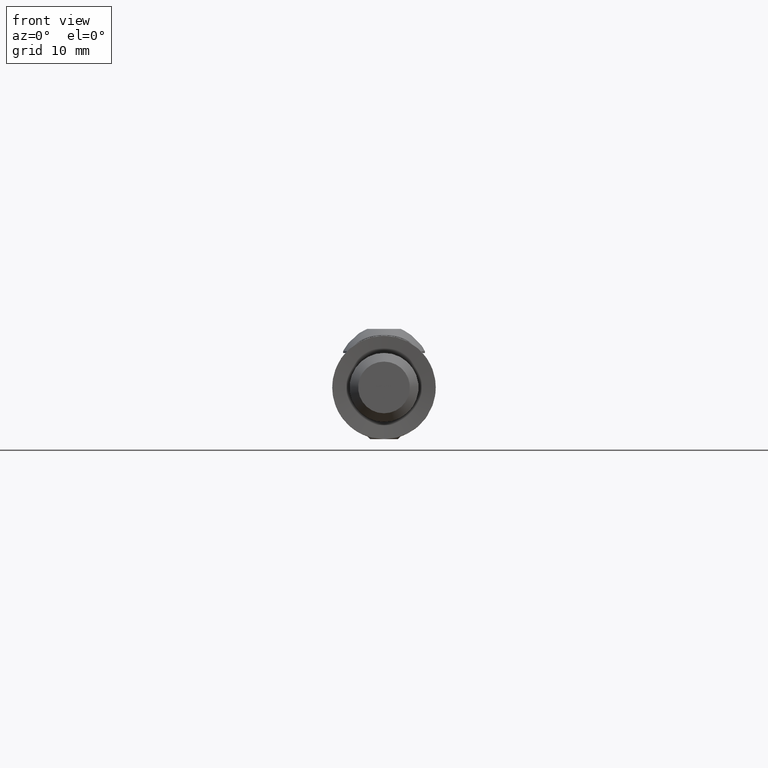
[diagram: clean part render]
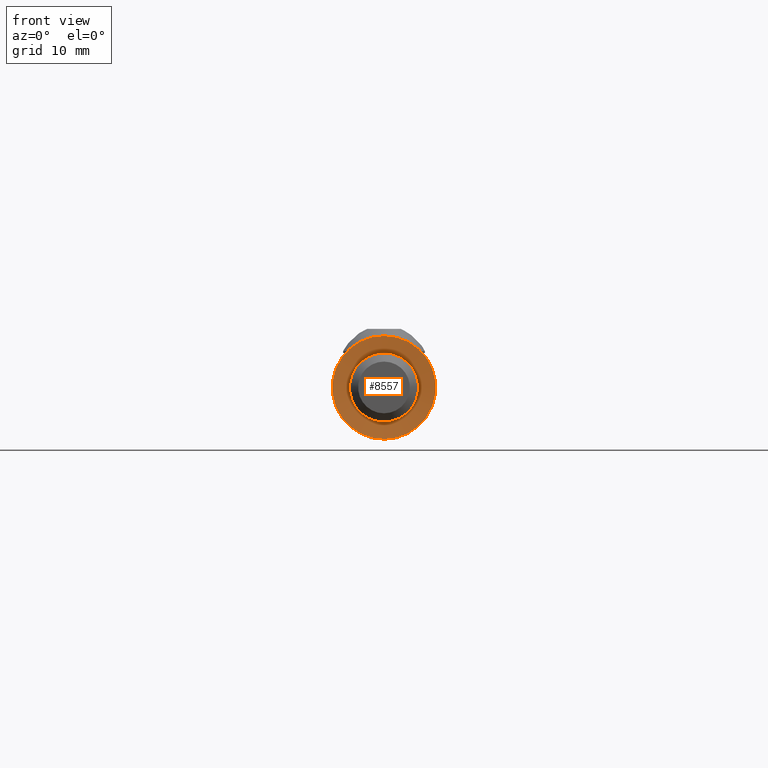
[diagram: same view with one face highlighted and labeled with its STEP entity id]
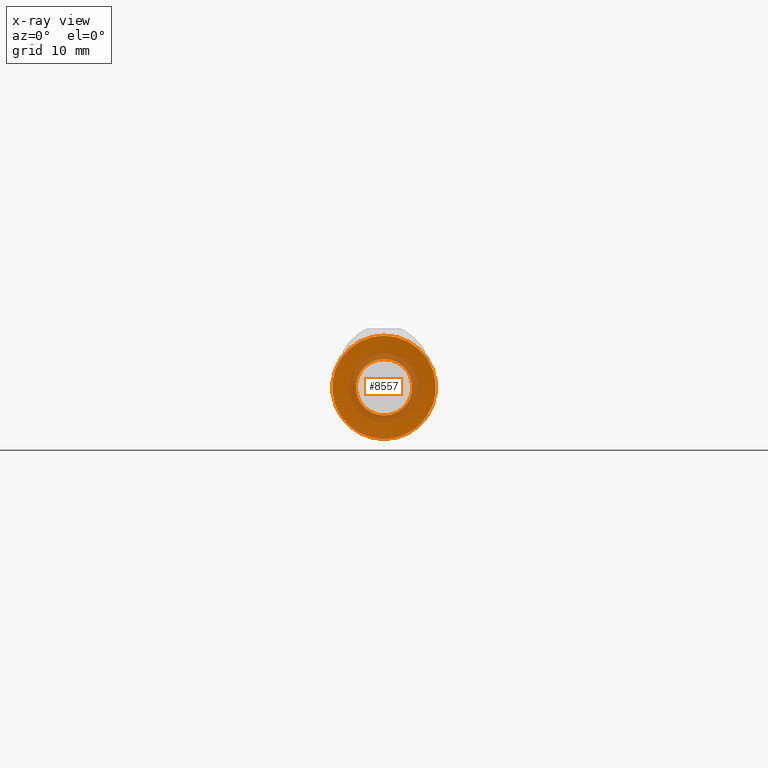
[diagram: x-ray of the same camera — body ghosted, the highlighted face saturated]
A machine part, front view. The second image highlights one B-rep face of the part: STEP entity #8557.
The next image is the same camera in x-ray: the body ghosted, the highlighted face saturated — about 21% of this face is hidden behind the body in this view.
In plain terms, the highlighted conical surface has half-angle 85 deg.
Its self-contained STEP definition (entity closure, byte-faithful):
#255 = ORIENTED_EDGE ( 'NONE', *, *, #8605, .F. ) ;
#2161 = CONICAL_SURFACE ( 'NONE', #15650, 3.271788935686913202, 1.483529864195187287 ) ;
#2788 = AXIS2_PLACEMENT_3D ( 'NONE', #13208, #11602, #4364 ) ;
#3002 = EDGE_LOOP ( 'NONE', ( #13147 ) ) ;
#3239 = CARTESIAN_POINT ( 'NONE',  ( 0.000000000000000000, 0.2386875398333712928, 0.000000000000000000 ) ) ;
#3343 = CARTESIAN_POINT ( 'NONE',  ( 0.000000000000000000, 0.2386875398333712928, -3.271788935686913202 ) ) ;
#4364 = DIRECTION ( 'NONE',  ( 0.000000000000000000, 0.000000000000000000, -1.000000000000000000 ) ) ;
#4941 = CIRCLE ( 'NONE', #2788, 6.000000000000000000 ) ;
#5349 = EDGE_CURVE ( 'NONE', #6459, #6459, #4941, .T. ) ;
#6459 = VERTEX_POINT ( 'NONE', #12130 ) ;
#7019 = FACE_OUTER_BOUND ( 'NONE', #3002, .T. ) ;
#7698 = EDGE_LOOP ( 'NONE', ( #255 ) ) ;
#7819 = DIRECTION ( 'NONE',  ( 0.000000000000000000, 0.000000000000000000, -1.000000000000000000 ) ) ;
#8557 = ADVANCED_FACE ( 'NONE', ( #7019, #17161 ), #2161, .F. ) ;
#8605 = EDGE_CURVE ( 'NONE', #12467, #12467, #12561, .T. ) ;
#11602 = DIRECTION ( 'NONE',  ( -0.000000000000000000, -1.000000000000000000, -0.000000000000000000 ) ) ;
#11778 = DIRECTION ( 'NONE',  ( 0.000000000000000000, 0.000000000000000000, -1.000000000000000000 ) ) ;
#11902 = DIRECTION ( 'NONE',  ( -0.000000000000000000, -1.000000000000000000, -0.000000000000000000 ) ) ;
#12130 = CARTESIAN_POINT ( 'NONE',  ( 0.000000000000000000, 0.000000000000000000, -6.000000000000000000 ) ) ;
#12467 = VERTEX_POINT ( 'NONE', #3343 ) ;
#12561 = CIRCLE ( 'NONE', #14061, 3.271788935686913202 ) ;
#13147 = ORIENTED_EDGE ( 'NONE', *, *, #5349, .T. ) ;
#13208 = CARTESIAN_POINT ( 'NONE',  ( 0.000000000000000000, 0.000000000000000000, 0.000000000000000000 ) ) ;
#13642 = DIRECTION ( 'NONE',  ( -0.000000000000000000, -1.000000000000000000, -0.000000000000000000 ) ) ;
#14061 = AXIS2_PLACEMENT_3D ( 'NONE', #3239, #13642, #7819 ) ;
#15650 = AXIS2_PLACEMENT_3D ( 'NONE', #17885, #11902, #11778 ) ;
#17161 = FACE_BOUND ( 'NONE', #7698, .T. ) ;
#17885 = CARTESIAN_POINT ( 'NONE',  ( 0.000000000000000000, 0.2386875398333712928, 0.000000000000000000 ) ) ;